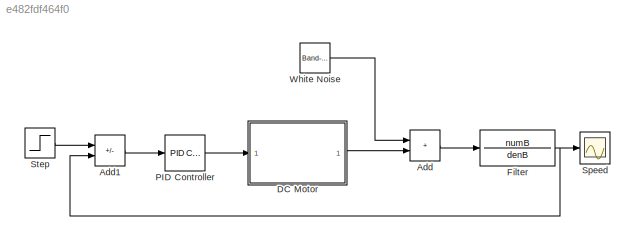
MODEL slx_e482fdf464f0
KIND model
CONFIG AbsTol = auto
CONFIG EnableMultiTasking = off
CONFIG FixedStep = auto
CONFIG MaxStep = auto
CONFIG MinStep = auto
CONFIG RelTol = 1e-3
CONFIG SampleTimeConstraint = Unconstrained
CONFIG SolverName = VariableStepAuto
CONFIG StartTime = 0.0
CONFIG StopTime = 5
BLOCK [Sum] Add
  IconShape = rectangular
BLOCK [Sum] Add1
  IconShape = rectangular
  Inputs = +-
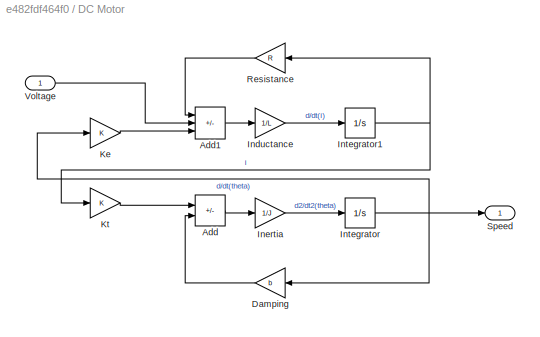
BLOCK [SubSystem] DC Motor
BLOCK [Sum] DC Motor/Add
  IconShape = rectangular
  Inputs = +-
BLOCK [Sum] DC Motor/Add1
  IconShape = rectangular
  Inputs = -+-
BLOCK [Gain] DC Motor/Damping
  Gain = b
BLOCK [Gain] DC Motor/Inductance
  Gain = 1/L
BLOCK [Gain] DC Motor/Inertia
  Gain = 1/J
BLOCK [Integrator] DC Motor/Integrator
BLOCK [Integrator] DC Motor/Integrator1
BLOCK [Gain] DC Motor/Ke
  Gain = K
BLOCK [Gain] DC Motor/Kt
  Gain = K
BLOCK [Gain] DC Motor/Resistance
  Gain = R
BLOCK [Outport] DC Motor/Speed
BLOCK [Inport] DC Motor/Voltage
BLOCK [TransferFcn] Filter
  Denominator = denB
  Numerator = numB
BLOCK [Reference] PID Controller  REF=slpidlib/PID Controller
  LibrarySourceBlock = simulink/Continuous/PID Controller
  SourceBlock = slpidlib/PID Controller
  SourceType = PID 1dof
BLOCK [Scope] Speed
  Floating = off
  NumInputPorts = 1
  ScopeSpecificationString = Simulink.scopes.TimeScopeBlockCfg('CurrentConfiguration', extmgr.ConfigurationSet(extmgr.Configuration('Core','General UI',true),extmgr.Configuration('Core','Source UI',true),extmgr.Configuration('Sources','WiredSimulink',true),extmgr.Configuration('Visuals','Time Domain',true,'SerializedDisplays',{struct('MinYLimReal','-0.04384','MaxYLimReal','0.10051','YLabelReal','','MinYLimMag','0.00000','MaxY...<+1323ch>
BLOCK [Step] Step
  SampleTime = 0
  Time = 0
BLOCK [Reference] White Noise  REF=simulink/Sources/Band-Limited
White Noise
  SourceBlock = simulink/Sources/Band-Limited\nWhite Noise
  SourceType = Band-Limited White Noise.
LINE Add1:1 -> PID Controller:1
LINE Add:1 -> Filter:1
LINE DC Motor/Add1:1 -> DC Motor/Inductance:1
LINE DC Motor/Add:1 -> DC Motor/Inertia:1
LINE DC Motor/Damping:1 -> DC Motor/Add:2
LINE DC Motor/Inductance:1 -> DC Motor/Integrator1:1
LINE DC Motor/Inertia:1 -> DC Motor/Integrator:1
NET DC Motor/Integrator1:1 -> DC Motor/Kt:1, DC Motor/Resistance:1
NET DC Motor/Integrator:1 -> DC Motor/Damping:1, DC Motor/Ke:1, DC Motor/Speed:1
LINE DC Motor/Ke:1 -> DC Motor/Add1:3
LINE DC Motor/Kt:1 -> DC Motor/Add:1
LINE DC Motor/Resistance:1 -> DC Motor/Add1:1
LINE DC Motor/Voltage:1 -> DC Motor/Add1:2
LINE DC Motor:1 -> Add:2
NET Filter:1 -> Add1:2, Speed:1
LINE PID Controller:1 -> DC Motor:1
LINE Step:1 -> Add1:1
LINE White Noise:1 -> Add:1
note: NET lines group one-source signal fan-out (src -> all destinations, sorted); 1:1 wires keep LINE
